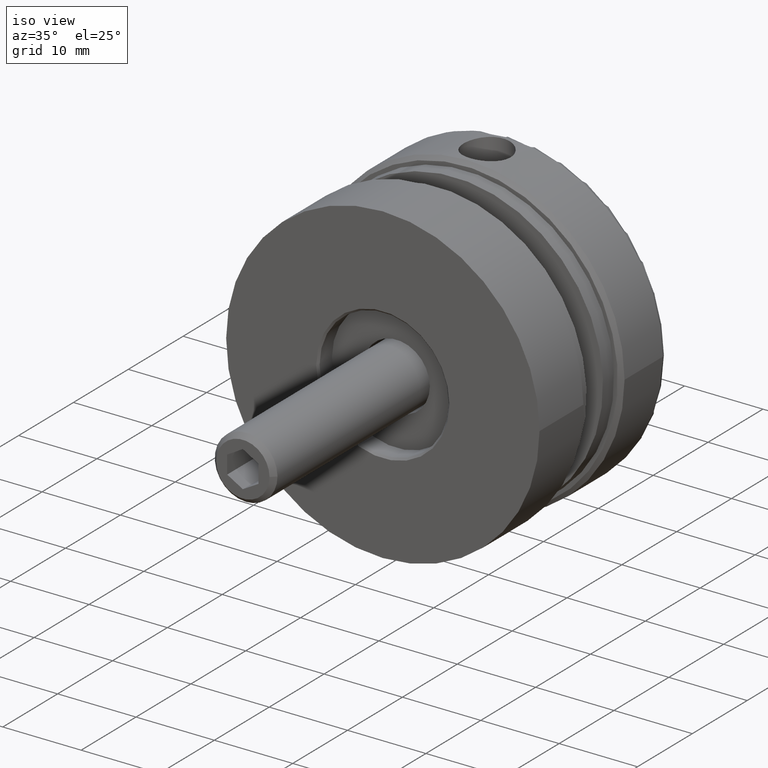
[diagram: clean part render]
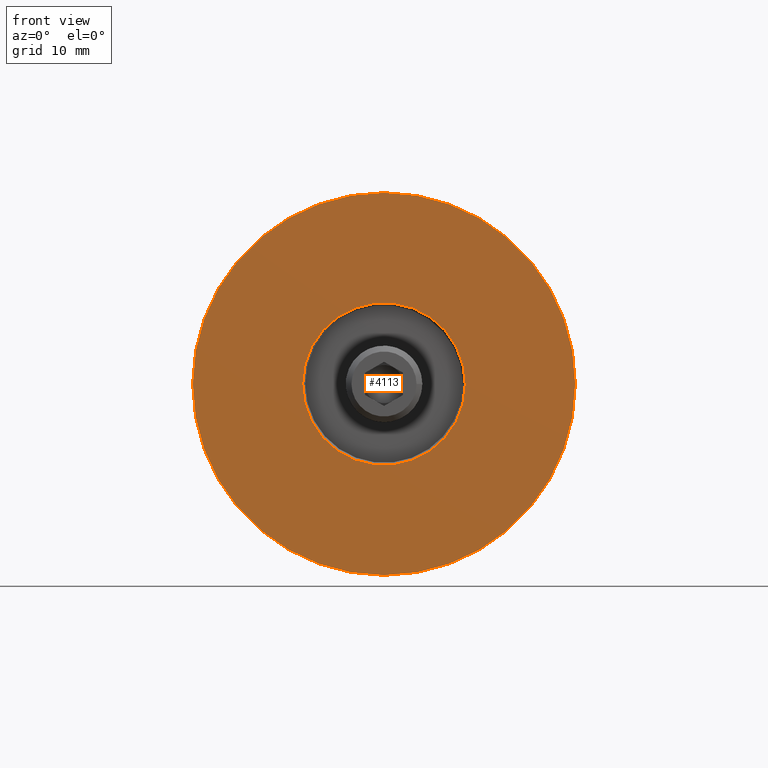
[diagram: tour spotlight — one face highlighted and labeled with its STEP entity id]
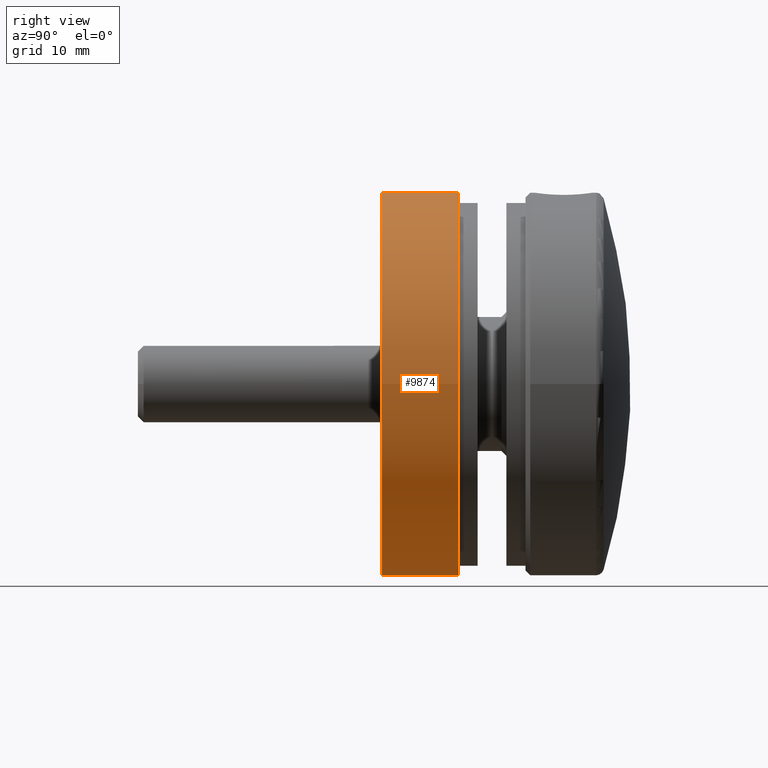
[diagram: tour spotlight — one face highlighted and labeled with its STEP entity id]
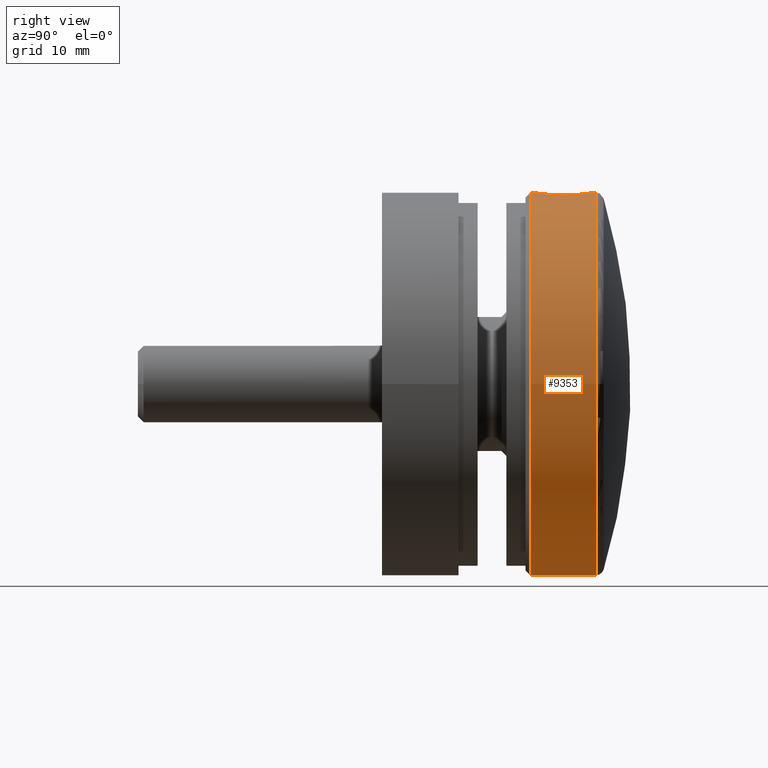
[diagram: tour spotlight — one face highlighted and labeled with its STEP entity id]
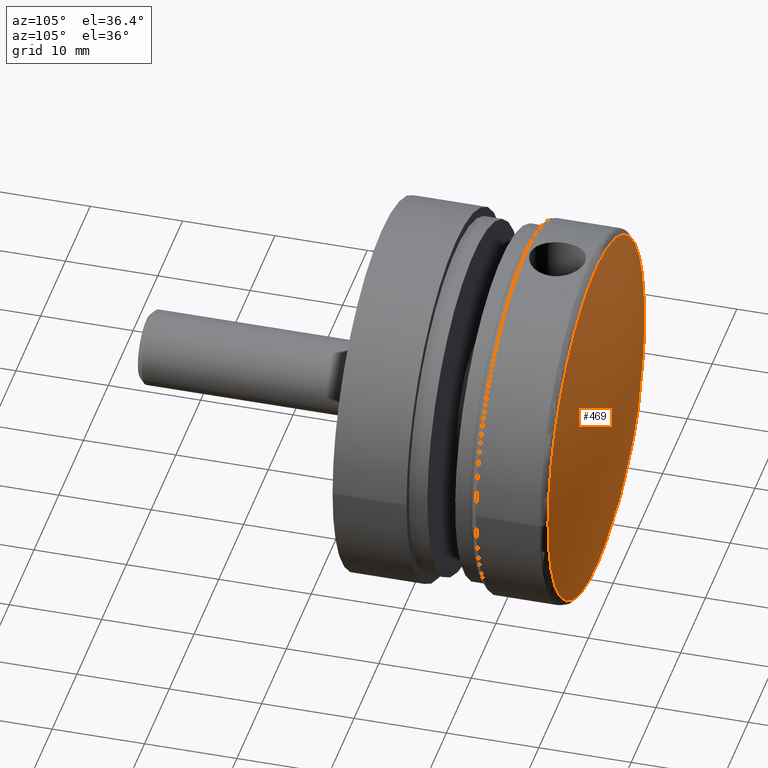
[diagram: tour spotlight — one face highlighted and labeled with its STEP entity id]
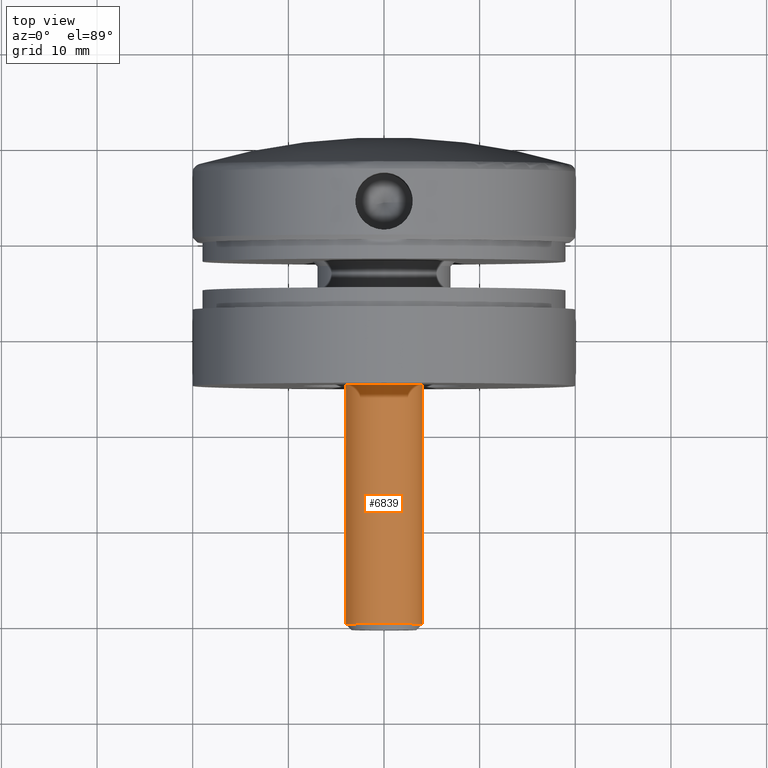
[diagram: tour spotlight — one face highlighted and labeled with its STEP entity id]
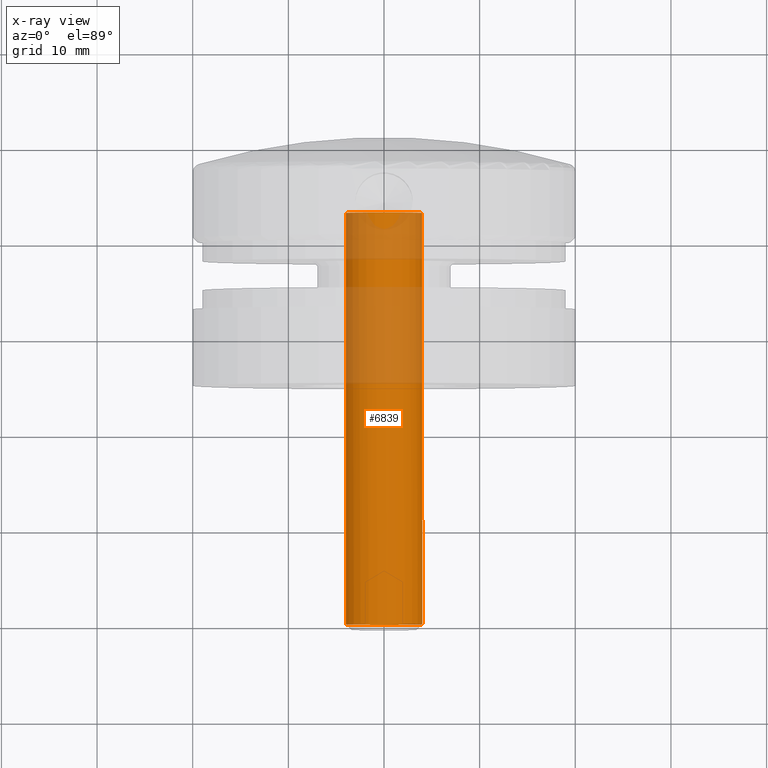
[diagram: x-ray of the same camera — body ghosted, this tour face saturated]
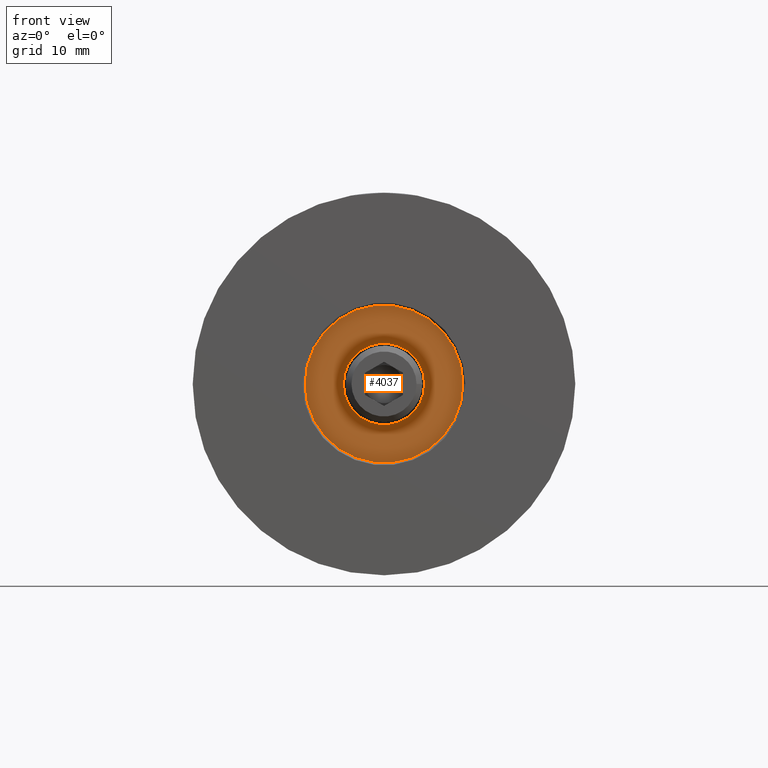
[diagram: tour spotlight — one face highlighted and labeled with its STEP entity id]
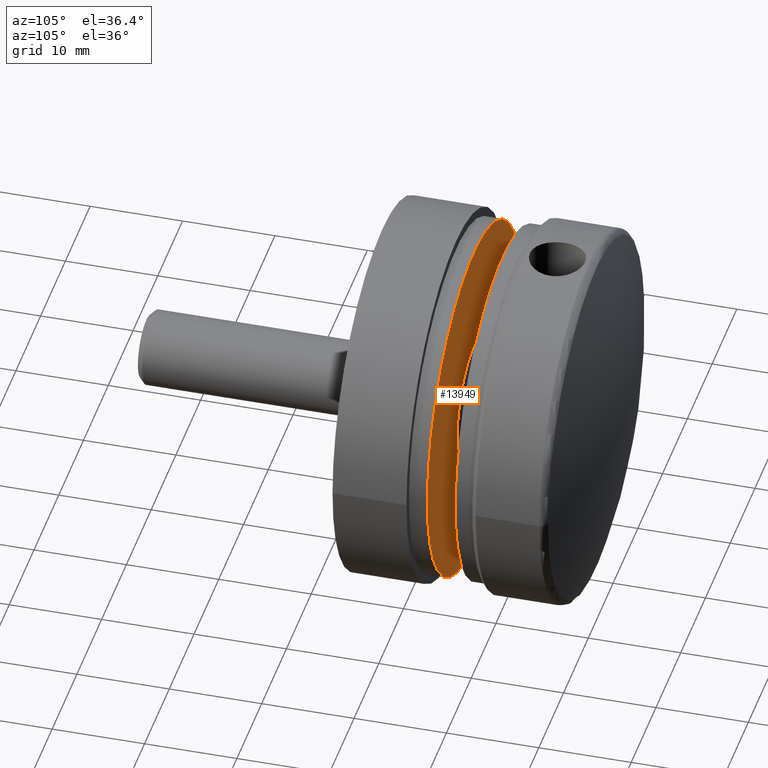
[diagram: tour spotlight — one face highlighted and labeled with its STEP entity id]
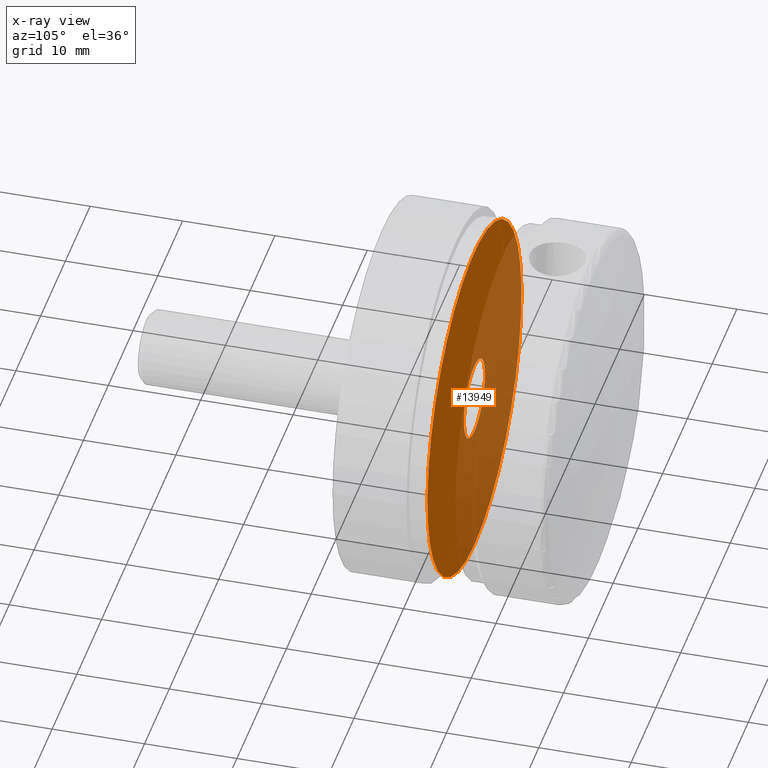
[diagram: x-ray of the same camera — body ghosted, this tour face saturated]
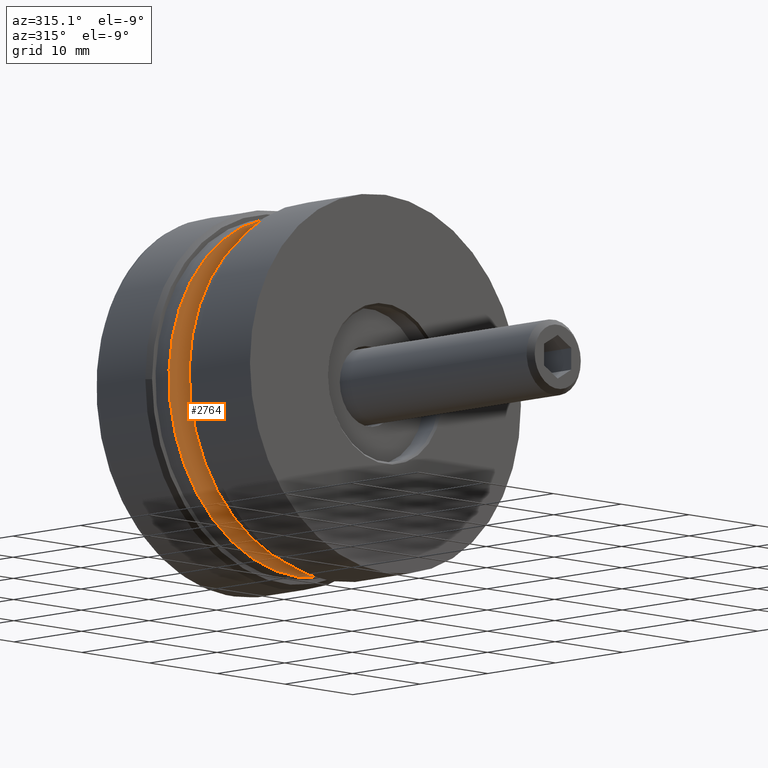
[diagram: tour spotlight — one face highlighted and labeled with its STEP entity id]
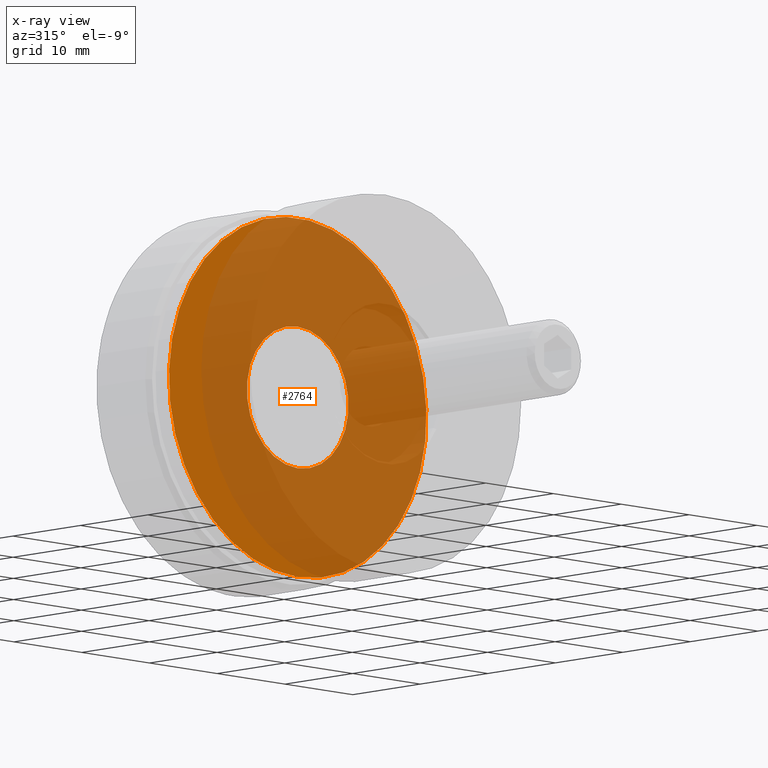
[diagram: x-ray of the same camera — body ghosted, this tour face saturated]
A machine part: a face-by-face anatomy tour. The part has 275 B-rep faces; the first image is the clean iso view, then the 8 largest visible faces are spotlighted one at a time (largest first), each with its STEP entity span.

Face 1 — front view, entity #4113. In plain terms, the highlighted planar face has unit normal (0, -1, 0).
Definition (entity closure, byte-faithful):
#115 = CIRCLE ( 'NONE', #12068, 20.00000000000000000 ) ;
#412 = DIRECTION ( 'NONE',  ( -1.000000000000000000, 4.336808689942017736E-16, 0.000000000000000000 ) ) ;
#907 = CIRCLE ( 'NONE', #1624, 8.499999999999998224 ) ;
#974 = EDGE_LOOP ( 'NONE', ( #6660 ) ) ;
#1624 = AXIS2_PLACEMENT_3D ( 'NONE', #9790, #11944, #5078 ) ;
#1743 = VERTEX_POINT ( 'NONE', #9096 ) ;
#2371 = ORIENTED_EDGE ( 'NONE', *, *, #13141, .F. ) ;
#3614 = DIRECTION ( 'NONE',  ( -4.336808689942017736E-16, -1.000000000000000000, 0.000000000000000000 ) ) ;
#3712 = DIRECTION ( 'NONE',  ( 1.000000000000000000, -4.336808689942017736E-16, 0.000000000000000000 ) ) ;
#4113 = ADVANCED_FACE ( 'NONE', ( #6268, #4650 ), #14132, .T. ) ;
#4650 = FACE_OUTER_BOUND ( 'NONE', #13905, .T. ) ;
#5078 = DIRECTION ( 'NONE',  ( -1.000000000000000000, 4.336808689942017736E-16, 0.000000000000000000 ) ) ;
#5925 = CARTESIAN_POINT ( 'NONE',  ( -4.622231866529366047E-30, -1.040834085586084257E-14, 0.000000000000000000 ) ) ;
#5979 = CARTESIAN_POINT ( 'NONE',  ( -8.499999999999998224, -3.701302075481072657E-15, 0.000000000000000000 ) ) ;
#6170 = EDGE_CURVE ( 'NONE', #1743, #1743, #907, .T. ) ;
#6268 = FACE_BOUND ( 'NONE', #974, .T. ) ;
#6660 = ORIENTED_EDGE ( 'NONE', *, *, #6170, .T. ) ;
#7108 = AXIS2_PLACEMENT_3D ( 'NONE', #5979, #3614, #3712 ) ;
#7491 = DIRECTION ( 'NONE',  ( 4.336808689942017736E-16, 1.000000000000000000, -0.000000000000000000 ) ) ;
#7867 = VERTEX_POINT ( 'NONE', #7923 ) ;
#7923 = CARTESIAN_POINT ( 'NONE',  ( -20.00000000000000000, -1.734723475976807094E-15, 0.000000000000000000 ) ) ;
#9096 = CARTESIAN_POINT ( 'NONE',  ( -8.499999999999998224, -1.517883041479706996E-15, 0.000000000000000000 ) ) ;
#9790 = CARTESIAN_POINT ( 'NONE',  ( -2.311115933264683024E-30, -5.204170427930421283E-15, 0.000000000000000000 ) ) ;
#11944 = DIRECTION ( 'NONE',  ( 4.336808689942017736E-16, 1.000000000000000000, -0.000000000000000000 ) ) ;
#12068 = AXIS2_PLACEMENT_3D ( 'NONE', #5925, #7491, #412 ) ;
#13141 = EDGE_CURVE ( 'NONE', #7867, #7867, #115, .T. ) ;
#13905 = EDGE_LOOP ( 'NONE', ( #2371 ) ) ;
#14132 = PLANE ( 'NONE',  #7108 ) ;

Face 2 — right view, entity #9874. In plain terms, the highlighted cylindrical surface (bore or boss wall) has radius 20 mm, axis along (-0, 1, -0).
Definition (entity closure, byte-faithful):
#115 = CIRCLE ( 'NONE', #12068, 20.00000000000000000 ) ;
#412 = DIRECTION ( 'NONE',  ( -1.000000000000000000, 4.336808689942017736E-16, 0.000000000000000000 ) ) ;
#1804 = FACE_OUTER_BOUND ( 'NONE', #11565, .T. ) ;
#4343 = CARTESIAN_POINT ( 'NONE',  ( -20.00000000000000355, 8.000000000000000000, 0.000000000000000000 ) ) ;
#4459 = CARTESIAN_POINT ( 'NONE',  ( 3.469446951953614189E-15, 8.000000000000000000, 0.000000000000000000 ) ) ;
#4548 = EDGE_CURVE ( 'NONE', #8973, #8973, #13527, .T. ) ;
#4550 = DIRECTION ( 'NONE',  ( -1.000000000000000000, 4.336808689942016257E-16, 0.000000000000000000 ) ) ;
#5211 = FACE_OUTER_BOUND ( 'NONE', #14827, .T. ) ;
#5925 = CARTESIAN_POINT ( 'NONE',  ( -4.622231866529366047E-30, -1.040834085586084257E-14, 0.000000000000000000 ) ) ;
#7491 = DIRECTION ( 'NONE',  ( 4.336808689942017736E-16, 1.000000000000000000, -0.000000000000000000 ) ) ;
#7620 = AXIS2_PLACEMENT_3D ( 'NONE', #4459, #8163, #12583 ) ;
#7867 = VERTEX_POINT ( 'NONE', #7923 ) ;
#7923 = CARTESIAN_POINT ( 'NONE',  ( -20.00000000000000000, -1.734723475976807094E-15, 0.000000000000000000 ) ) ;
#7954 = CARTESIAN_POINT ( 'NONE',  ( 3.469446951953610245E-15, 7.999999999999991118, 0.000000000000000000 ) ) ;
#8163 = DIRECTION ( 'NONE',  ( 4.336808689942017736E-16, 1.000000000000000000, -0.000000000000000000 ) ) ;
#8802 = ORIENTED_EDGE ( 'NONE', *, *, #4548, .F. ) ;
#8973 = VERTEX_POINT ( 'NONE', #4343 ) ;
#9567 = CYLINDRICAL_SURFACE ( 'NONE', #7620, 20.00000000000000355 ) ;
#9874 = ADVANCED_FACE ( 'NONE', ( #1804, #5211 ), #9567, .T. ) ;
#11565 = EDGE_LOOP ( 'NONE', ( #13672 ) ) ;
#12068 = AXIS2_PLACEMENT_3D ( 'NONE', #5925, #7491, #412 ) ;
#12077 = AXIS2_PLACEMENT_3D ( 'NONE', #7954, #13767, #4550 ) ;
#12583 = DIRECTION ( 'NONE',  ( -1.000000000000000000, 4.336808689942016750E-16, 0.000000000000000000 ) ) ;
#13141 = EDGE_CURVE ( 'NONE', #7867, #7867, #115, .T. ) ;
#13527 = CIRCLE ( 'NONE', #12077, 20.00000000000000711 ) ;
#13672 = ORIENTED_EDGE ( 'NONE', *, *, #13141, .T. ) ;
#13767 = DIRECTION ( 'NONE',  ( 4.336808689942017736E-16, 1.000000000000000000, -0.000000000000000000 ) ) ;
#14827 = EDGE_LOOP ( 'NONE', ( #8802 ) ) ;

Face 3 — right view, entity #9353. In plain terms, the highlighted cylindrical surface (bore or boss wall) has radius 20 mm, axis along (0, -1, 0).
Definition (entity closure, byte-faithful):
#77 = ORIENTED_EDGE ( 'NONE', *, *, #1967, .T. ) ;
#663 = CARTESIAN_POINT ( 'NONE',  ( -2.904244946109210357, 4.772452195124960106, 19.78804872610958299 ) ) ;
#719 = CARTESIAN_POINT ( 'NONE',  ( 1.832071248250929374, 1.611219754882194932, 19.91659034290908181 ) ) ;
#758 = CARTESIAN_POINT ( 'NONE',  ( 2.385781400097931382, 2.165670691361518685, 19.85749434712200312 ) ) ;
#808 = CARTESIAN_POINT ( 'NONE',  ( 2.846307810905473357, 3.026920022762669582, 19.79657340378337693 ) ) ;
#913 = CARTESIAN_POINT ( 'NONE',  ( 1.981482987437620080, 6.255945435349328676, 19.90208647069351500 ) ) ;
#1755 = EDGE_LOOP ( 'NONE', ( #11734 ) ) ;
#1801 = CARTESIAN_POINT ( 'NONE',  ( -1.329000246935090113, 1.298249859347310409, 19.95662573320378286 ) ) ;
#1852 = CARTESIAN_POINT ( 'NONE',  ( -2.981144381110904185, 4.384677817788499965, 19.77660965061653187 ) ) ;
#1895 = CARTESIAN_POINT ( 'NONE',  ( -2.695737535104842042, 2.663983177191850515, 19.81763806455638033 ) ) ;
#1947 = CARTESIAN_POINT ( 'NONE',  ( 1.504243725710038060, 1.391897211145205926, 19.94402935115139996 ) ) ;
#1967 = EDGE_CURVE ( 'NONE', #6767, #6767, #5192, .T. ) ;
#1996 = CARTESIAN_POINT ( 'NONE',  ( 2.694944518628680008, 5.327454306437990894, 19.81774487506233484 ) ) ;
#2038 = CARTESIAN_POINT ( 'NONE',  ( 0.9657274049644248848, 6.842097939216760238, 19.97749811756152027 ) ) ;
#2082 = CARTESIAN_POINT ( 'NONE',  ( 2.844982231046248256, 4.966718345130437307, 19.79676271506473029 ) ) ;
#2094 = VERTEX_POINT ( 'NONE', #14807 ) ;
#2185 = CARTESIAN_POINT ( 'NONE',  ( -1.333671717301641468, 6.689445687771606863, 19.95631324620889657 ) ) ;
#2903 = CARTESIAN_POINT ( 'NONE',  ( -2.385346488580513125, 5.824998558950380989, 19.85754949948118053 ) ) ;
#2941 = CARTESIAN_POINT ( 'NONE',  ( 2.695634571067645702, 2.663759504817301504, 19.81765225613440862 ) ) ;
#3045 = CARTESIAN_POINT ( 'NONE',  ( -2.846751857708068822, 4.961538809150909834, 19.79650720354969806 ) ) ;
#3098 = CARTESIAN_POINT ( 'NONE',  ( -1.504275438480749294, 1.392061028481431206, 19.94401427874445432 ) ) ;
#3136 = CARTESIAN_POINT ( 'NONE',  ( -0.9703054951543788054, 6.840562345118187615, 19.97727773938222029 ) ) ;
#3191 = CARTESIAN_POINT ( 'NONE',  ( 2.902947195030746830, 4.777284174358786828, 19.78823979352068108 ) ) ;
#3326 = ORIENTED_EDGE ( 'NONE', *, *, #4616, .T. ) ;
#3478 = DIRECTION ( 'NONE',  ( 9.462128050782584868E-16, -1.000000000000000000, -0.000000000000000000 ) ) ;
#3851 = B_SPLINE_CURVE_WITH_KNOTS ( 'NONE', 3,
 ( #14573, #7690, #5404, #6366, #808, #2941, #14482, #758, #8919, #7639, #719, #1947, #8870, #8815, #13515, #4158, #8761, #9820, #7547, #5264, #9922, #1801, #3098, #4109, #11051, #11194, #12218, #12272, #1895, #13381, #9974, #6418, #6564, #14523, #1852, #663, #3045, #11140, #4199, #2903, #12328, #13467, #10016, #4252, #2185, #3136, #14768, #6619, #11288, #10158, #13614, #12472, #2038, #11392, #7939, #13658, #913, #5593, #4356, #14716, #1996, #2082, #3191, #6757, #5445, #9106 ),
 .UNSPECIFIED., .T., .F.,
 ( 4, 2, 2, 2, 2, 2, 2, 2, 2, 2, 2, 2, 2, 2, 2, 2, 2, 2, 2, 2, 2, 2, 2, 2, 2, 2, 2, 2, 2, 2, 2, 2, 4 ),
 ( 0.000000000000000000, 0.0005869663246212992059, 0.001173932649242598412, 0.001760898973863897835, 0.002347865298485196824, 0.002934831623106494512, 0.003521797947727792200, 0.004108764272349090321, 0.004695730596970387576, 0.005282696921591685697, 0.005869663246212983819, 0.006456629570834281941, 0.007043595895455580930, 0.007630562220076878184, 0.008217528544698177173, 0.008804494869319475295, 0.009391461193940773416, 0.009978427518562071538, 0.01056539384318336619, 0.01115236016780466431, 0.01173932649242596243, 0.01232629281704726056, 0.01291325914166855521, 0.01350022546628985333, 0.01408719179091115145, 0.01467415811553244784, 0.01526112444015374423, 0.01584809076477504061, 0.01643505708939634047, 0.01702202341401763686, 0.01760898973863893324, 0.01819595606326022963, 0.01878292238788152602 ),
 .UNSPECIFIED. ) ;
#4109 = CARTESIAN_POINT ( 'NONE',  ( -1.829026254143617969, 1.609041315127196059, 19.91685751084322575 ) ) ;
#4158 = CARTESIAN_POINT ( 'NONE',  ( 0.3924843016013101482, 1.014235132259551975, 19.99708734834322144 ) ) ;
#4199 = CARTESIAN_POINT ( 'NONE',  ( -2.604078776341595347, 5.497513335365487919, 19.83005102670025011 ) ) ;
#4252 = CARTESIAN_POINT ( 'NONE',  ( -1.505751477479396305, 6.597118657433129307, 19.94390529219465336 ) ) ;
#4356 = CARTESIAN_POINT ( 'NONE',  ( 2.382192207591608657, 5.829160075772611194, 19.85793123343768585 ) ) ;
#4572 = CARTESIAN_POINT ( 'NONE',  ( 2.999999999999988454, 3.994999999999996998, 19.77371993328518229 ) ) ;
#4616 = EDGE_CURVE ( 'NONE', #2094, #2094, #12999, .T. ) ;
#5192 = CIRCLE ( 'NONE', #6696, 19.99999999999999289 ) ;
#5264 = CARTESIAN_POINT ( 'NONE',  ( -0.7783033420959301063, 1.091078117895944333, 19.98577807688070962 ) ) ;
#5325 = CARTESIAN_POINT ( 'NONE',  ( -7.007641024777777317E-15, 7.405988364528839796, 0.000000000000000000 ) ) ;
#5404 = CARTESIAN_POINT ( 'NONE',  ( 2.980494632510935382, 3.601384464667872098, 19.77670706137168111 ) ) ;
#5445 = CARTESIAN_POINT ( 'NONE',  ( 2.999999999999987566, 4.193494672168482040, 19.77371993328518940 ) ) ;
#5593 = CARTESIAN_POINT ( 'NONE',  ( 2.257915189029448211, 5.979935286169751230, 19.87262286955643020 ) ) ;
#6366 = CARTESIAN_POINT ( 'NONE',  ( 2.904122174186587024, 3.217596731754319705, 19.78806622293176076 ) ) ;
#6418 = CARTESIAN_POINT ( 'NONE',  ( -2.980208671656109143, 3.598908363933509769, 19.77675080022012466 ) ) ;
#6487 = FACE_BOUND ( 'NONE', #1755, .T. ) ;
#6564 = CARTESIAN_POINT ( 'NONE',  ( -2.999924367750781418, 3.797927883773788427, 19.77373140794606243 ) ) ;
#6582 = EDGE_LOOP ( 'NONE', ( #77 ) ) ;
#6619 = CARTESIAN_POINT ( 'NONE',  ( -0.3963926871789849038, 6.975121601832649176, 19.99699192943738524 ) ) ;
#6696 = AXIS2_PLACEMENT_3D ( 'NONE', #5325, #13444, #8732 ) ;
#6757 = CARTESIAN_POINT ( 'NONE',  ( 2.980492046609052093, 4.389636676817129768, 19.77670861652950407 ) ) ;
#6767 = VERTEX_POINT ( 'NONE', #10189 ) ;
#7547 = CARTESIAN_POINT ( 'NONE',  ( -0.3933378054690898074, 1.014428953963818492, 19.99705895379198850 ) ) ;
#7639 = CARTESIAN_POINT ( 'NONE',  ( 1.982912023966428183, 1.735301850126051981, 19.90194385507969344 ) ) ;
#7690 = CARTESIAN_POINT ( 'NONE',  ( 2.999999999999987566, 3.796505327831507959, 19.77371993328518229 ) ) ;
#7939 = CARTESIAN_POINT ( 'NONE',  ( 1.501080283454475639, 6.599844582463810561, 19.94426147716974640 ) ) ;
#8732 = DIRECTION ( 'NONE',  ( 1.000000000000000000, 9.540979117872442964E-16, 0.000000000000000000 ) ) ;
#8761 = CARTESIAN_POINT ( 'NONE',  ( 0.1976517996777144015, 0.9951113623459328927, 19.99998329565072197 ) ) ;
#8815 = CARTESIAN_POINT ( 'NONE',  ( 0.9692005117596770303, 1.149159496943955805, 19.97731995618197587 ) ) ;
#8870 = CARTESIAN_POINT ( 'NONE',  ( 1.330056958386002686, 1.298871982216261767, 19.95654305612850621 ) ) ;
#8919 = CARTESIAN_POINT ( 'NONE',  ( 2.259260527010547470, 2.011589378261172456, 19.87246967985173995 ) ) ;
#9106 = CARTESIAN_POINT ( 'NONE',  ( 2.999999999999987566, 3.994999999999995222, 19.77371993328518585 ) ) ;
#9353 = ADVANCED_FACE ( 'NONE', ( #6487, #11038, #12673 ), #14284, .T. ) ;
#9820 = CARTESIAN_POINT ( 'NONE',  ( -0.1942566587511933562, 0.9948895982359851065, 20.00001656026199015 ) ) ;
#9922 = CARTESIAN_POINT ( 'NONE',  ( -0.9654443059216516465, 1.147787280579954272, 19.97751409969940539 ) ) ;
#9974 = CARTESIAN_POINT ( 'NONE',  ( -2.903185432767896312, 3.213945165983599139, 19.78820432185765199 ) ) ;
#10016 = CARTESIAN_POINT ( 'NONE',  ( -1.831084454568192577, 6.379415806760995622, 19.91667079449274524 ) ) ;
#10158 = CARTESIAN_POINT ( 'NONE',  ( 0.1957541252189639036, 6.995166735568335348, 20.00002501032647118 ) ) ;
#10189 = CARTESIAN_POINT ( 'NONE',  ( 19.99999999999998579, 7.405988364528859336, 0.000000000000000000 ) ) ;
#10301 = EDGE_LOOP ( 'NONE', ( #3326 ) ) ;
#10399 = CARTESIAN_POINT ( 'NONE',  ( 0.000000000000000000, 0.000000000000000000, 0.000000000000000000 ) ) ;
#10412 = VERTEX_POINT ( 'NONE', #4572 ) ;
#11038 = FACE_OUTER_BOUND ( 'NONE', #6582, .T. ) ;
#11051 = CARTESIAN_POINT ( 'NONE',  ( -1.980792087563050030, 1.733243495970535397, 19.90216665992417333 ) ) ;
#11140 = CARTESIAN_POINT ( 'NONE',  ( -2.697296528857994424, 5.322699078997125355, 19.81742377391596577 ) ) ;
#11194 = CARTESIAN_POINT ( 'NONE',  ( -2.260454243774321359, 2.012721919236700963, 19.87234565081214654 ) ) ;
#11288 = CARTESIAN_POINT ( 'NONE',  ( -0.2008317574897388047, 6.994831115902126584, 19.99997466739415231 ) ) ;
#11392 = CARTESIAN_POINT ( 'NONE',  ( 1.328779319930804448, 6.691839189702617041, 19.95663814315420836 ) ) ;
#11734 = ORIENTED_EDGE ( 'NONE', *, *, #13271, .T. ) ;
#12218 = CARTESIAN_POINT ( 'NONE',  ( -2.384381064545721518, 2.163917290254680825, 19.85766134232187596 ) ) ;
#12272 = CARTESIAN_POINT ( 'NONE',  ( -2.601643994846837504, 2.488485653911706397, 19.83036650118665634 ) ) ;
#12328 = CARTESIAN_POINT ( 'NONE',  ( -2.261463040302941430, 5.975914504907145819, 19.87221892517047905 ) ) ;
#12472 = CARTESIAN_POINT ( 'NONE',  ( 0.7748024653411145213, 6.899821084409995642, 19.98590931602772969 ) ) ;
#12673 = FACE_OUTER_BOUND ( 'NONE', #10301, .T. ) ;
#12835 = DIRECTION ( 'NONE',  ( -9.462128050782584868E-16, 1.000000000000000000, 0.000000000000000000 ) ) ;
#12878 = AXIS2_PLACEMENT_3D ( 'NONE', #10399, #3478, #14901 ) ;
#12999 = CIRCLE ( 'NONE', #13794, 19.99999999999999289 ) ;
#13271 = EDGE_CURVE ( 'NONE', #10412, #10412, #3851, .T. ) ;
#13381 = CARTESIAN_POINT ( 'NONE',  ( -2.846314737807527973, 3.026961233156909792, 19.79657222170714093 ) ) ;
#13444 = DIRECTION ( 'NONE',  ( 9.462128050782586841E-16, -1.000000000000000000, -0.000000000000000000 ) ) ;
#13467 = CARTESIAN_POINT ( 'NONE',  ( -1.985183788243350067, 6.252716254382630900, 19.90171714750904997 ) ) ;
#13515 = CARTESIAN_POINT ( 'NONE',  ( 0.7798554023450405825, 1.091411069866732531, 19.98572920600360447 ) ) ;
#13614 = CARTESIAN_POINT ( 'NONE',  ( 0.3908299546655025769, 6.975865032044842984, 19.99710334011701107 ) ) ;
#13658 = CARTESIAN_POINT ( 'NONE',  ( 1.827406881401280492, 6.382266513394359464, 19.91701262681982598 ) ) ;
#13794 = AXIS2_PLACEMENT_3D ( 'NONE', #13816, #12835, #14880 ) ;
#13816 = CARTESIAN_POINT ( 'NONE',  ( -4.731064025391258908E-16, 0.4999999999999964473, 0.000000000000000000 ) ) ;
#14284 = CYLINDRICAL_SURFACE ( 'NONE', #12878, 19.99999999999999289 ) ;
#14482 = CARTESIAN_POINT ( 'NONE',  ( 2.603472936415865746, 2.491561515110397362, 19.83012766737487098 ) ) ;
#14523 = CARTESIAN_POINT ( 'NONE',  ( -3.000075187788553865, 4.189762673103095914, 19.77370852605633189 ) ) ;
#14573 = CARTESIAN_POINT ( 'NONE',  ( 2.999999999999987566, 3.994999999999995222, 19.77371993328518585 ) ) ;
#14716 = CARTESIAN_POINT ( 'NONE',  ( 2.602028829569768220, 5.501130428467652322, 19.83032320855959796 ) ) ;
#14768 = CARTESIAN_POINT ( 'NONE',  ( -0.7799630153351138073, 6.898430663692166398, 19.98570666959620112 ) ) ;
#14807 = CARTESIAN_POINT ( 'NONE',  ( -19.99999999999999289, 0.4999999999999774625, 0.000000000000000000 ) ) ;
#14880 = DIRECTION ( 'NONE',  ( -1.000000000000000000, -9.486769009248167742E-16, 0.000000000000000000 ) ) ;
#14901 = DIRECTION ( 'NONE',  ( 1.000000000000000000, 9.462128050782584868E-16, 0.000000000000000000 ) ) ;

Face 4 — auxiliary view, entity #469. In plain terms, the highlighted spherical surface has radius 68.1667 mm.
Definition (entity closure, byte-faithful):
#469 = ADVANCED_FACE ( 'NONE', ( #15004 ), #6659, .T. ) ;
#2159 = CARTESIAN_POINT ( 'NONE',  ( 0.000000000000000000, -57.16666666666710483, 0.000000000000000000 ) ) ;
#2161 = AXIS2_PLACEMENT_3D ( 'NONE', #2159, #9129, #3308 ) ;
#3308 = DIRECTION ( 'NONE',  ( 1.000000000000000000, 9.161375814449584673E-16, 0.000000000000000000 ) ) ;
#5906 = EDGE_CURVE ( 'NONE', #13325, #13325, #11788, .T. ) ;
#6206 = EDGE_LOOP ( 'NONE', ( #11363 ) ) ;
#6523 = AXIS2_PLACEMENT_3D ( 'NONE', #14952, #10344, #12742 ) ;
#6659 = SPHERICAL_SURFACE ( 'NONE', #2161, 68.16666666666708352 ) ;
#9129 = DIRECTION ( 'NONE',  ( 0.000000000000000000, -0.000000000000000000, 1.000000000000000000 ) ) ;
#10344 = DIRECTION ( 'NONE',  ( -9.462128050782586841E-16, 1.000000000000000000, 0.000000000000000000 ) ) ;
#11326 = CARTESIAN_POINT ( 'NONE',  ( 19.42800593765456441, 8.172808612301606601, 0.000000000000000000 ) ) ;
#11363 = ORIENTED_EDGE ( 'NONE', *, *, #5906, .T. ) ;
#11788 = CIRCLE ( 'NONE', #6523, 19.42800593765462480 ) ;
#12742 = DIRECTION ( 'NONE',  ( 1.000000000000000000, 9.821882027923899333E-16, 0.000000000000000000 ) ) ;
#13325 = VERTEX_POINT ( 'NONE', #11326 ) ;
#14952 = CARTESIAN_POINT ( 'NONE',  ( -6.182504818605450607E-14, 8.172808612301588838, 0.000000000000000000 ) ) ;
#15004 = FACE_OUTER_BOUND ( 'NONE', #6206, .T. ) ;

Face 5 — top view, entity #6839. An x-ray twin of the same camera follows (body ghosted, this face saturated) — the face is partly hidden behind the body. In plain terms, the highlighted cylindrical surface (bore or boss wall) has radius 4 mm, axis along (0, 1, -0).
Definition (entity closure, byte-faithful):
#7 = DIRECTION ( 'NONE',  ( -1.000000000000000000, 0.000000000000000000, 0.000000000000000000 ) ) ;
#311 = CIRCLE ( 'NONE', #12369, 4.000000000000000000 ) ;
#984 = DIRECTION ( 'NONE',  ( 0.000000000000000000, 0.000000000000000000, -1.000000000000000000 ) ) ;
#1192 = CARTESIAN_POINT ( 'NONE',  ( 44.39999999999999147, 0.000000000000000000, 0.000000000000000000 ) ) ;
#2158 = EDGE_CURVE ( 'NONE', #8606, #8606, #4680, .T. ) ;
#2254 = DIRECTION ( 'NONE',  ( 0.000000000000000000, 0.000000000000000000, 1.000000000000000000 ) ) ;
#3162 = EDGE_CURVE ( 'NONE', #6598, #6598, #311, .T. ) ;
#3229 = ORIENTED_EDGE ( 'NONE', *, *, #2158, .T. ) ;
#3568 = CARTESIAN_POINT ( 'NONE',  ( 45.00000000000000000, 0.000000000000000000, 0.000000000000000000 ) ) ;
#4680 = CIRCLE ( 'NONE', #7972, 4.000000000000000000 ) ;
#4979 = AXIS2_PLACEMENT_3D ( 'NONE', #3568, #10340, #2254 ) ;
#5344 = ORIENTED_EDGE ( 'NONE', *, *, #3162, .F. ) ;
#5985 = FACE_OUTER_BOUND ( 'NONE', #12737, .T. ) ;
#6598 = VERTEX_POINT ( 'NONE', #14704 ) ;
#6839 = ADVANCED_FACE ( 'NONE', ( #9073, #5985 ), #10143, .T. ) ;
#7972 = AXIS2_PLACEMENT_3D ( 'NONE', #1192, #7, #984 ) ;
#8606 = VERTEX_POINT ( 'NONE', #13644 ) ;
#9073 = FACE_OUTER_BOUND ( 'NONE', #13122, .T. ) ;
#9865 = DIRECTION ( 'NONE',  ( -5.421010862427522170E-17, -1.000000000000000000, 0.000000000000000000 ) ) ;
#10143 = CYLINDRICAL_SURFACE ( 'NONE', #4979, 4.000000000000000000 ) ;
#10340 = DIRECTION ( 'NONE',  ( -1.000000000000000000, -0.000000000000000000, -0.000000000000000000 ) ) ;
#11047 = DIRECTION ( 'NONE',  ( -1.000000000000000000, 3.242134472605255366E-17, -0.000000000000000000 ) ) ;
#12369 = AXIS2_PLACEMENT_3D ( 'NONE', #13328, #11047, #9865 ) ;
#12737 = EDGE_LOOP ( 'NONE', ( #5344 ) ) ;
#13122 = EDGE_LOOP ( 'NONE', ( #3229 ) ) ;
#13328 = CARTESIAN_POINT ( 'NONE',  ( 1.399999999999979261, -4.538988261647289596E-17, 0.000000000000000000 ) ) ;
#13644 = CARTESIAN_POINT ( 'NONE',  ( 44.39999999999999147, 0.000000000000000000, -4.000000000000000000 ) ) ;
#14704 = CARTESIAN_POINT ( 'NONE',  ( 1.399999999999979039, -4.000000000000000000, 0.000000000000000000 ) ) ;

Face 6 — front view, entity #4037. In plain terms, the highlighted planar face has unit normal (0, -1, 0).
Definition (entity closure, byte-faithful):
#49 = PLANE ( 'NONE',  #418 ) ;
#74 = EDGE_LOOP ( 'NONE', ( #3171 ) ) ;
#418 = AXIS2_PLACEMENT_3D ( 'NONE', #13929, #9320, #12986 ) ;
#631 = VERTEX_POINT ( 'NONE', #2030 ) ;
#2030 = CARTESIAN_POINT ( 'NONE',  ( -8.249999999999998224, 2.500000000000000444, 0.000000000000000000 ) ) ;
#2360 = ORIENTED_EDGE ( 'NONE', *, *, #4094, .T. ) ;
#3171 = ORIENTED_EDGE ( 'NONE', *, *, #3521, .F. ) ;
#3521 = EDGE_CURVE ( 'NONE', #631, #631, #13370, .T. ) ;
#4018 = AXIS2_PLACEMENT_3D ( 'NONE', #12005, #5049, #4528 ) ;
#4037 = ADVANCED_FACE ( 'NONE', ( #8096, #10447 ), #49, .T. ) ;
#4094 = EDGE_CURVE ( 'NONE', #7342, #7342, #5180, .T. ) ;
#4528 = DIRECTION ( 'NONE',  ( -1.000000000000000000, 4.205390244792259832E-16, 0.000000000000000000 ) ) ;
#4817 = CARTESIAN_POINT ( 'NONE',  ( 1.084202172485503645E-15, 2.499999999999998668, 0.000000000000000000 ) ) ;
#5049 = DIRECTION ( 'NONE',  ( 4.336808689942017736E-16, 1.000000000000000000, -0.000000000000000000 ) ) ;
#5180 = CIRCLE ( 'NONE', #8175, 4.250000000000000888 ) ;
#6984 = DIRECTION ( 'NONE',  ( -1.000000000000000000, 4.081702296416015997E-16, 0.000000000000000000 ) ) ;
#7342 = VERTEX_POINT ( 'NONE', #8949 ) ;
#8096 = FACE_BOUND ( 'NONE', #8208, .T. ) ;
#8175 = AXIS2_PLACEMENT_3D ( 'NONE', #4817, #11658, #6984 ) ;
#8208 = EDGE_LOOP ( 'NONE', ( #2360 ) ) ;
#8949 = CARTESIAN_POINT ( 'NONE',  ( -4.250000000000000000, 2.500000000000000444, 0.000000000000000000 ) ) ;
#9320 = DIRECTION ( 'NONE',  ( -4.336808689942017736E-16, -1.000000000000000000, 0.000000000000000000 ) ) ;
#10447 = FACE_OUTER_BOUND ( 'NONE', #74, .T. ) ;
#11658 = DIRECTION ( 'NONE',  ( 4.336808689942017736E-16, 1.000000000000000000, -0.000000000000000000 ) ) ;
#12005 = CARTESIAN_POINT ( 'NONE',  ( 1.084202172485502856E-15, 2.499999999999996891, 0.000000000000000000 ) ) ;
#12986 = DIRECTION ( 'NONE',  ( 1.000000000000000000, -4.336808689942017736E-16, 0.000000000000000000 ) ) ;
#13370 = CIRCLE ( 'NONE', #4018, 8.250000000000000000 ) ;
#13929 = CARTESIAN_POINT ( 'NONE',  ( -8.249999999999998224, 2.500000000000000888, 0.000000000000000000 ) ) ;

Face 7 — auxiliary view, entity #13949. An x-ray twin of the same camera follows (body ghosted, this face saturated) — the face is partly hidden behind the body. In plain terms, the highlighted planar face has unit normal (0, 1, 0).
Definition (entity closure, byte-faithful):
#80 = VERTEX_POINT ( 'NONE', #4476 ) ;
#539 = PLANE ( 'NONE',  #5441 ) ;
#1337 = DIRECTION ( 'NONE',  ( -0.000000000000000000, -1.000000000000000000, -0.000000000000000000 ) ) ;
#1647 = AXIS2_PLACEMENT_3D ( 'NONE', #9406, #3937, #11956 ) ;
#1677 = CARTESIAN_POINT ( 'NONE',  ( 19.00000000000000000, 1.999999999999999112, 0.000000000000000000 ) ) ;
#2332 = CIRCLE ( 'NONE', #1647, 4.250000000000000000 ) ;
#2506 = CIRCLE ( 'NONE', #12846, 19.00000000000000000 ) ;
#3931 = DIRECTION ( 'NONE',  ( 0.000000000000000000, -0.000000000000000000, 1.000000000000000000 ) ) ;
#3937 = DIRECTION ( 'NONE',  ( -0.000000000000000000, -1.000000000000000000, -0.000000000000000000 ) ) ;
#4132 = EDGE_LOOP ( 'NONE', ( #14248 ) ) ;
#4476 = CARTESIAN_POINT ( 'NONE',  ( 0.000000000000000000, 1.999999999999998224, 4.250000000000000000 ) ) ;
#5233 = DIRECTION ( 'NONE',  ( 0.000000000000000000, 1.000000000000000000, 0.000000000000000000 ) ) ;
#5441 = AXIS2_PLACEMENT_3D ( 'NONE', #1677, #5233, #3931 ) ;
#5703 = FACE_BOUND ( 'NONE', #4132, .T. ) ;
#6087 = FACE_OUTER_BOUND ( 'NONE', #14468, .T. ) ;
#9406 = CARTESIAN_POINT ( 'NONE',  ( 0.000000000000000000, 1.999999999999998224, 0.000000000000000000 ) ) ;
#9426 = DIRECTION ( 'NONE',  ( 0.000000000000000000, 0.000000000000000000, -1.000000000000000000 ) ) ;
#9506 = VERTEX_POINT ( 'NONE', #14857 ) ;
#11643 = EDGE_CURVE ( 'NONE', #80, #80, #2332, .T. ) ;
#11920 = CARTESIAN_POINT ( 'NONE',  ( 0.000000000000000000, 2.000000000000000000, 0.000000000000000000 ) ) ;
#11956 = DIRECTION ( 'NONE',  ( 0.000000000000000000, 0.000000000000000000, 1.000000000000000000 ) ) ;
#12541 = EDGE_CURVE ( 'NONE', #9506, #9506, #2506, .T. ) ;
#12846 = AXIS2_PLACEMENT_3D ( 'NONE', #11920, #1337, #9426 ) ;
#13070 = ORIENTED_EDGE ( 'NONE', *, *, #12541, .F. ) ;
#13949 = ADVANCED_FACE ( 'NONE', ( #6087, #5703 ), #539, .T. ) ;
#14248 = ORIENTED_EDGE ( 'NONE', *, *, #11643, .T. ) ;
#14468 = EDGE_LOOP ( 'NONE', ( #13070 ) ) ;
#14857 = CARTESIAN_POINT ( 'NONE',  ( 0.000000000000000000, 2.000000000000000000, -19.00000000000000000 ) ) ;

Face 8 — auxiliary view, entity #2764. An x-ray twin of the same camera follows (body ghosted, this face saturated) — the face is partly hidden behind the body. In plain terms, the highlighted planar face has unit normal (-0, -1, 0).
Definition (entity closure, byte-faithful):
#29 = DIRECTION ( 'NONE',  ( 0.000000000000000000, 0.000000000000000000, 1.000000000000000000 ) ) ;
#1281 = CARTESIAN_POINT ( 'NONE',  ( 2.052683297350808079E-48, 1.999999999999998224, -1.069105884036878258E-47 ) ) ;
#1637 = CIRCLE ( 'NONE', #4226, 19.00000000000028777 ) ;
#2264 = AXIS2_PLACEMENT_3D ( 'NONE', #6731, #11415, #11315 ) ;
#2764 = ADVANCED_FACE ( 'NONE', ( #5214, #14459 ), #3309, .T. ) ;
#3175 = CARTESIAN_POINT ( 'NONE',  ( 2.052683297350808079E-48, 1.999999999999998224, 7.500000000000122569 ) ) ;
#3280 = CARTESIAN_POINT ( 'NONE',  ( 2.052683297350810510E-48, 2.000000000000000000, -19.00000000000028777 ) ) ;
#3309 = PLANE ( 'NONE',  #2264 ) ;
#3721 = VERTEX_POINT ( 'NONE', #3280 ) ;
#3750 = CIRCLE ( 'NONE', #11687, 7.500000000000122569 ) ;
#4226 = AXIS2_PLACEMENT_3D ( 'NONE', #7395, #13179, #14271 ) ;
#4795 = VERTEX_POINT ( 'NONE', #3175 ) ;
#5214 = FACE_BOUND ( 'NONE', #10564, .T. ) ;
#5557 = EDGE_CURVE ( 'NONE', #4795, #4795, #3750, .T. ) ;
#5960 = DIRECTION ( 'NONE',  ( -3.489561605496402237E-47, -1.000000000000000000, 1.861099522931397672E-46 ) ) ;
#6423 = ORIENTED_EDGE ( 'NONE', *, *, #11071, .F. ) ;
#6731 = CARTESIAN_POINT ( 'NONE',  ( 19.00000000000023448, 1.999999999999998224, -1.069105884036878258E-47 ) ) ;
#7395 = CARTESIAN_POINT ( 'NONE',  ( 2.052683297350810510E-48, 2.000000000000000000, -1.069105884036878258E-47 ) ) ;
#10564 = EDGE_LOOP ( 'NONE', ( #12736 ) ) ;
#11071 = EDGE_CURVE ( 'NONE', #3721, #3721, #1637, .T. ) ;
#11315 = DIRECTION ( 'NONE',  ( 5.880569790208264730E-78, -1.888468633562713363E-46, 1.000000000000000000 ) ) ;
#11415 = DIRECTION ( 'NONE',  ( 3.489561605496402237E-47, 1.000000000000000000, 1.888468633562713363E-46 ) ) ;
#11687 = AXIS2_PLACEMENT_3D ( 'NONE', #1281, #5960, #29 ) ;
#11688 = EDGE_LOOP ( 'NONE', ( #6423 ) ) ;
#12736 = ORIENTED_EDGE ( 'NONE', *, *, #5557, .T. ) ;
#13179 = DIRECTION ( 'NONE',  ( -3.489561605496402237E-47, -1.000000000000000000, 1.861099522931397672E-46 ) ) ;
#14271 = DIRECTION ( 'NONE',  ( 0.000000000000000000, 0.000000000000000000, -1.000000000000000000 ) ) ;
#14459 = FACE_OUTER_BOUND ( 'NONE', #11688, .T. ) ;